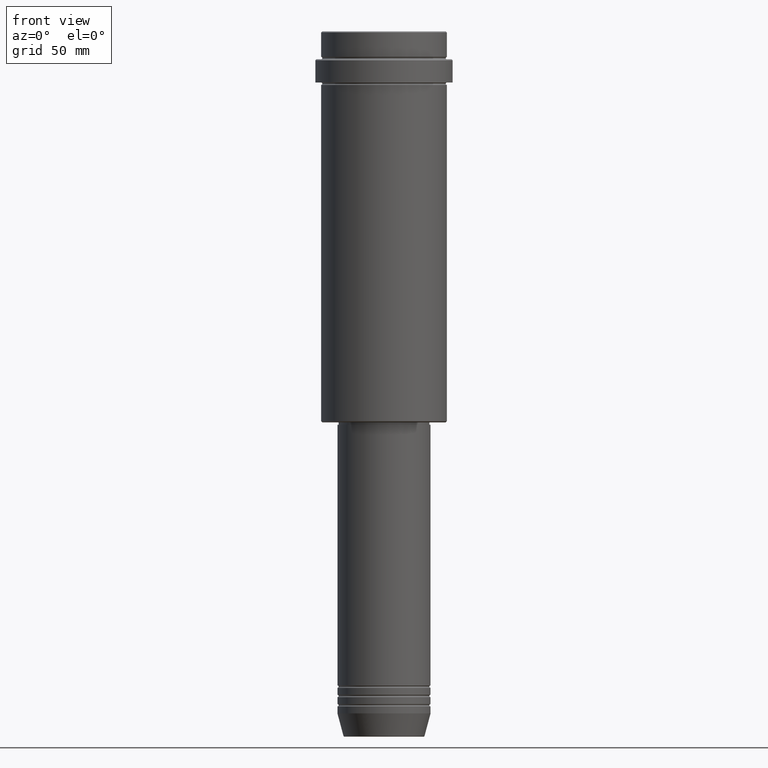
[diagram: clean part render]
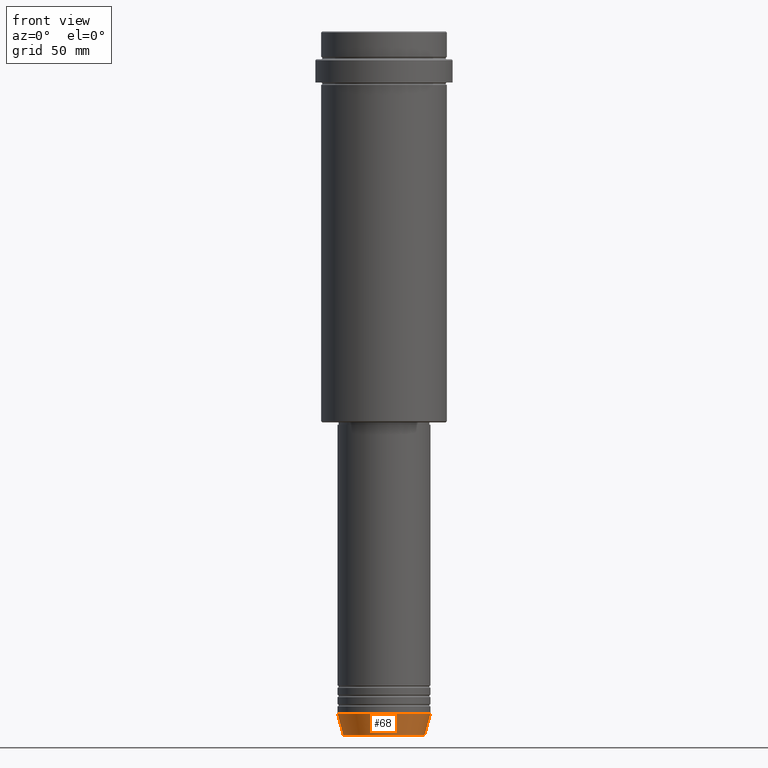
[diagram: same view with one face highlighted and labeled with its STEP entity id]
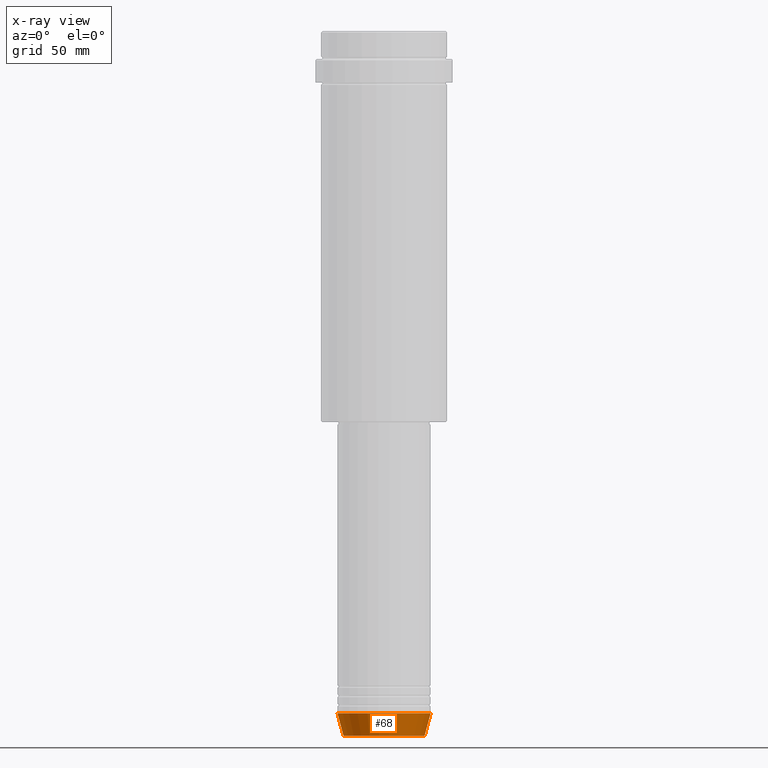
[diagram: x-ray of the same camera — body ghosted, the highlighted face saturated]
A machine part, front view. The second image highlights one B-rep face of the part: STEP entity #68.
The next image is the same camera in x-ray: the body ghosted, the highlighted face saturated — about 0% of this face is hidden behind the body in this view.
In plain terms, the highlighted conical surface has half-angle 15 deg.
Its self-contained STEP definition (entity closure, byte-faithful):
#68 = ADVANCED_FACE ( 'NONE', ( #827 ), #367, .T. ) ;
#127 = AXIS2_PLACEMENT_3D ( 'NONE', #761, #443, #880 ) ;
#165 = CIRCLE ( 'NONE', #401, 17.41980749484382684 ) ;
#179 = VERTEX_POINT ( 'NONE', #996 ) ;
#196 = LINE ( 'NONE', #327, #1379 ) ;
#299 = ORIENTED_EDGE ( 'NONE', *, *, #1387, .F. ) ;
#327 = CARTESIAN_POINT ( 'NONE',  ( -20.00000000000000000, 2.449293598294706513E-15, -293.0000000000000568 ) ) ;
#333 = DIRECTION ( 'NONE',  ( 0.2588190451025211836, 0.000000000000000000, 0.9659258262890680902 ) ) ;
#348 = CARTESIAN_POINT ( 'NONE',  ( -20.00000000000000000, 2.449293598294706513E-15, -293.0000000000000568 ) ) ;
#367 = CONICAL_SURFACE ( 'NONE', #944, 20.00000000000000000, 0.2617993877991499074 ) ;
#401 = AXIS2_PLACEMENT_3D ( 'NONE', #929, #1030, #1220 ) ;
#443 = DIRECTION ( 'NONE',  ( -0.000000000000000000, -0.000000000000000000, 1.000000000000000000 ) ) ;
#463 = VERTEX_POINT ( 'NONE', #576 ) ;
#480 = EDGE_CURVE ( 'NONE', #1305, #179, #824, .T. ) ;
#500 = VECTOR ( 'NONE', #333, 1000.000000000000114 ) ;
#555 = EDGE_CURVE ( 'NONE', #463, #701, #196, .T. ) ;
#563 = EDGE_CURVE ( 'NONE', #463, #1305, #165, .T. ) ;
#576 = CARTESIAN_POINT ( 'NONE',  ( -17.41980749484382684, 2.291302373663531915E-15, -302.6294095225512706 ) ) ;
#653 = ORIENTED_EDGE ( 'NONE', *, *, #563, .T. ) ;
#701 = VERTEX_POINT ( 'NONE', #348 ) ;
#761 = CARTESIAN_POINT ( 'NONE',  ( 0.000000000000000000, 0.000000000000000000, -293.0000000000000568 ) ) ;
#813 = DIRECTION ( 'NONE',  ( -0.000000000000000000, -0.000000000000000000, 1.000000000000000000 ) ) ;
#824 = LINE ( 'NONE', #1256, #500 ) ;
#827 = FACE_OUTER_BOUND ( 'NONE', #1063, .T. ) ;
#880 = DIRECTION ( 'NONE',  ( 1.000000000000000000, 0.000000000000000000, 0.000000000000000000 ) ) ;
#929 = CARTESIAN_POINT ( 'NONE',  ( 0.000000000000000000, 0.000000000000000000, -302.6294095225512706 ) ) ;
#934 = CARTESIAN_POINT ( 'NONE',  ( 0.000000000000000000, 0.000000000000000000, -293.0000000000000568 ) ) ;
#944 = AXIS2_PLACEMENT_3D ( 'NONE', #934, #813, #1024 ) ;
#964 = CIRCLE ( 'NONE', #127, 20.00000000000000000 ) ;
#990 = ORIENTED_EDGE ( 'NONE', *, *, #555, .F. ) ;
#996 = CARTESIAN_POINT ( 'NONE',  ( 20.00000000000000000, 0.000000000000000000, -293.0000000000000568 ) ) ;
#1024 = DIRECTION ( 'NONE',  ( 1.000000000000000000, 0.000000000000000000, 0.000000000000000000 ) ) ;
#1030 = DIRECTION ( 'NONE',  ( -0.000000000000000000, -0.000000000000000000, 1.000000000000000000 ) ) ;
#1063 = EDGE_LOOP ( 'NONE', ( #990, #653, #1288, #299 ) ) ;
#1193 = CARTESIAN_POINT ( 'NONE',  ( 17.41980749484382684, 0.000000000000000000, -302.6294095225512706 ) ) ;
#1220 = DIRECTION ( 'NONE',  ( 1.000000000000000000, 0.000000000000000000, 0.000000000000000000 ) ) ;
#1256 = CARTESIAN_POINT ( 'NONE',  ( 20.00000000000000000, 0.000000000000000000, -293.0000000000000568 ) ) ;
#1288 = ORIENTED_EDGE ( 'NONE', *, *, #480, .T. ) ;
#1305 = VERTEX_POINT ( 'NONE', #1193 ) ;
#1312 = DIRECTION ( 'NONE',  ( -0.2588190451025211836, 3.169619151431770488E-17, 0.9659258262890680902 ) ) ;
#1379 = VECTOR ( 'NONE', #1312, 1000.000000000000114 ) ;
#1387 = EDGE_CURVE ( 'NONE', #701, #179, #964, .T. ) ;